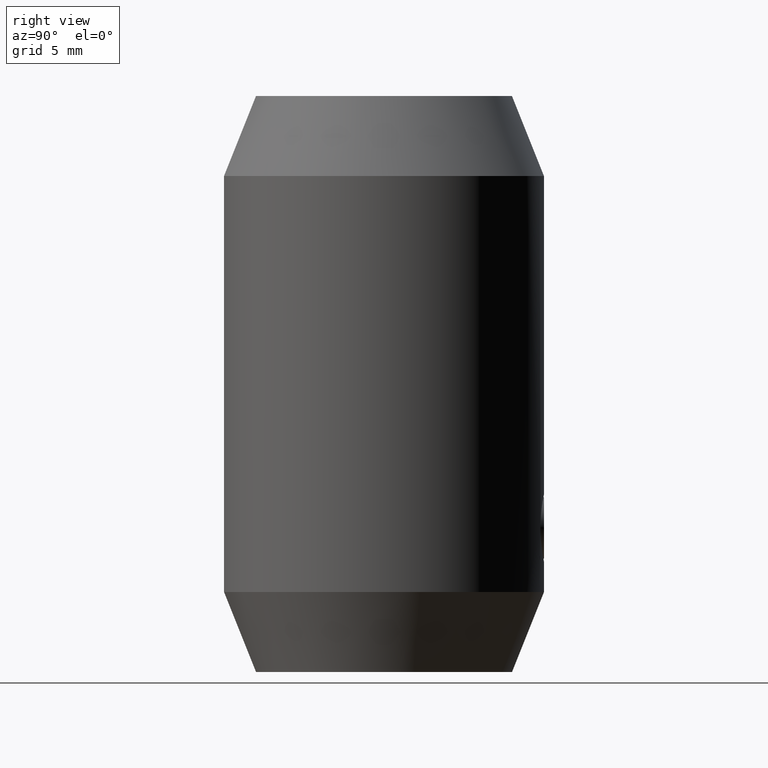
[diagram: clean part render]
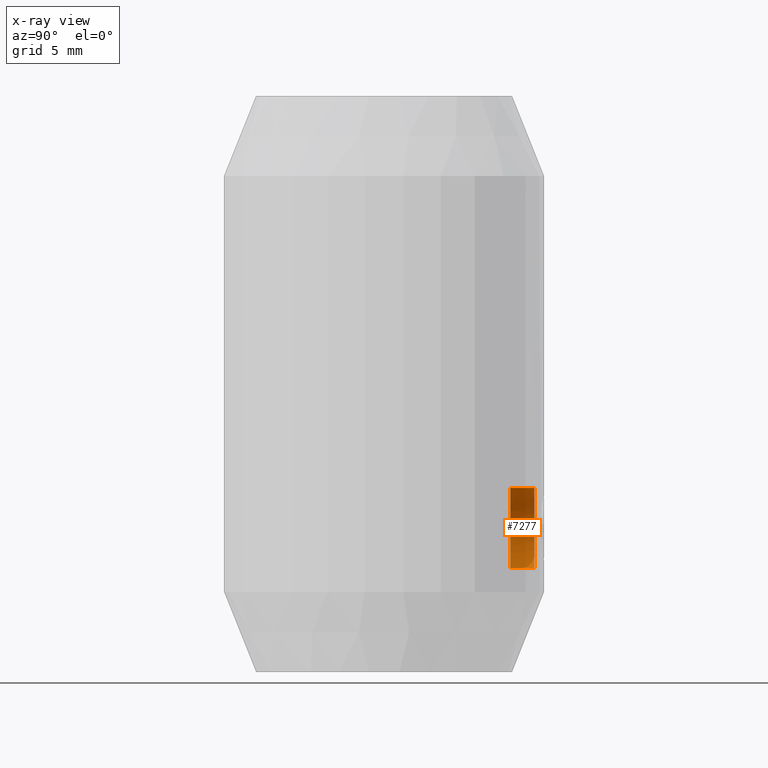
[diagram: x-ray — body ghosted, one internal face saturated and labeled with its STEP entity id]
A machine part, right view, then the same camera in x-ray: the body is ghosted and one INTERNAL B-rep face — a face not visible from any outside direction — is saturated and labeled: STEP entity #7277.
In plain terms, the highlighted cylindrical surface (partial cylindrical patch) has radius 2.5 mm, axis along (0, -1, -0).
Its self-contained STEP definition (entity closure, byte-faithful):
#214 = ORIENTED_EDGE ( 'NONE', *, *, #2729, .F. ) ;
#537 = CARTESIAN_POINT ( 'NONE',  ( 0.8999999999999892530, -4.538988261647288363E-17, 0.000000000000000000 ) ) ;
#828 = DIRECTION ( 'NONE',  ( -1.000000000000000000, -0.000000000000000000, -0.000000000000000000 ) ) ;
#1266 = EDGE_LOOP ( 'NONE', ( #9633, #12966, #12870, #214, #6891 ) ) ;
#1626 = CYLINDRICAL_SURFACE ( 'NONE', #8072, 2.500000000000000000 ) ;
#1789 = FACE_OUTER_BOUND ( 'NONE', #1266, .T. ) ;
#1974 = DIRECTION ( 'NONE',  ( 0.000000000000000000, 0.000000000000000000, 1.000000000000000000 ) ) ;
#2372 = DIRECTION ( 'NONE',  ( -1.000000000000000000, -0.000000000000000000, -0.000000000000000000 ) ) ;
#2729 = EDGE_CURVE ( 'NONE', #8457, #8615, #6673, .T. ) ;
#2753 = DIRECTION ( 'NONE',  ( -4.336808689942017736E-17, -1.000000000000000000, 0.000000000000000000 ) ) ;
#3198 = CARTESIAN_POINT ( 'NONE',  ( 3.000000000000000000, 0.000000000000000000, 0.000000000000000000 ) ) ;
#3340 = AXIS2_PLACEMENT_3D ( 'NONE', #537, #10498, #2753 ) ;
#3360 = DIRECTION ( 'NONE',  ( -1.000000000000000000, -0.000000000000000000, -0.000000000000000000 ) ) ;
#3660 = VECTOR ( 'NONE', #2372, 1000.000000000000000 ) ;
#4502 = AXIS2_PLACEMENT_3D ( 'NONE', #9214, #13583, #9126 ) ;
#4557 = VERTEX_POINT ( 'NONE', #7128 ) ;
#6594 = CARTESIAN_POINT ( 'NONE',  ( 2.399999999999998135, 0.000000000000000000, 0.000000000000000000 ) ) ;
#6673 = CIRCLE ( 'NONE', #4502, 2.500000000000000000 ) ;
#6891 = ORIENTED_EDGE ( 'NONE', *, *, #10669, .F. ) ;
#7128 = CARTESIAN_POINT ( 'NONE',  ( 2.399999999999998135, 3.061616997868383141E-16, -2.500000000000000000 ) ) ;
#7277 = ADVANCED_FACE ( 'NONE', ( #1789 ), #1626, .T. ) ;
#8072 = AXIS2_PLACEMENT_3D ( 'NONE', #3198, #828, #1974 ) ;
#8457 = VERTEX_POINT ( 'NONE', #13035 ) ;
#8615 = VERTEX_POINT ( 'NONE', #14469 ) ;
#8722 = LINE ( 'NONE', #12460, #12366 ) ;
#8916 = DIRECTION ( 'NONE',  ( -1.000000000000000000, 0.000000000000000000, 0.000000000000000000 ) ) ;
#9013 = DIRECTION ( 'NONE',  ( 0.000000000000000000, 0.000000000000000000, -1.000000000000000000 ) ) ;
#9039 = CARTESIAN_POINT ( 'NONE',  ( 3.000000000000000000, 3.061616997868383141E-16, -2.500000000000000000 ) ) ;
#9126 = DIRECTION ( 'NONE',  ( -4.336808689942017736E-17, -1.000000000000000000, 0.000000000000000000 ) ) ;
#9214 = CARTESIAN_POINT ( 'NONE',  ( 0.8999999999999892530, -4.538988261647288363E-17, 0.000000000000000000 ) ) ;
#9317 = AXIS2_PLACEMENT_3D ( 'NONE', #6594, #8916, #9013 ) ;
#9633 = ORIENTED_EDGE ( 'NONE', *, *, #11480, .T. ) ;
#10498 = DIRECTION ( 'NONE',  ( -1.000000000000000000, 5.043320290719269690E-17, -0.000000000000000000 ) ) ;
#10669 = EDGE_CURVE ( 'NONE', #11205, #8457, #8722, .T. ) ;
#11205 = VERTEX_POINT ( 'NONE', #11375 ) ;
#11375 = CARTESIAN_POINT ( 'NONE',  ( 2.399999999999998135, 0.000000000000000000, 2.500000000000000000 ) ) ;
#11480 = EDGE_CURVE ( 'NONE', #11205, #4557, #12191, .T. ) ;
#11896 = VERTEX_POINT ( 'NONE', #12890 ) ;
#12023 = EDGE_CURVE ( 'NONE', #4557, #11896, #13373, .T. ) ;
#12191 = CIRCLE ( 'NONE', #9317, 2.500000000000000000 ) ;
#12366 = VECTOR ( 'NONE', #3360, 1000.000000000000000 ) ;
#12460 = CARTESIAN_POINT ( 'NONE',  ( 3.000000000000000000, 0.000000000000000000, 2.500000000000000000 ) ) ;
#12603 = CIRCLE ( 'NONE', #3340, 2.500000000000000000 ) ;
#12870 = ORIENTED_EDGE ( 'NONE', *, *, #12934, .F. ) ;
#12890 = CARTESIAN_POINT ( 'NONE',  ( 0.8999999999999892530, 3.061616997868383141E-16, -2.500000000000000000 ) ) ;
#12934 = EDGE_CURVE ( 'NONE', #8615, #11896, #12603, .T. ) ;
#12966 = ORIENTED_EDGE ( 'NONE', *, *, #12023, .T. ) ;
#13035 = CARTESIAN_POINT ( 'NONE',  ( 0.8999999999999892530, 0.000000000000000000, 2.500000000000000000 ) ) ;
#13373 = LINE ( 'NONE', #9039, #3660 ) ;
#13583 = DIRECTION ( 'NONE',  ( -1.000000000000000000, 5.043320290719269690E-17, -0.000000000000000000 ) ) ;
#14469 = CARTESIAN_POINT ( 'NONE',  ( 0.8999999999999893641, 2.500000000000000000, 0.000000000000000000 ) ) ;